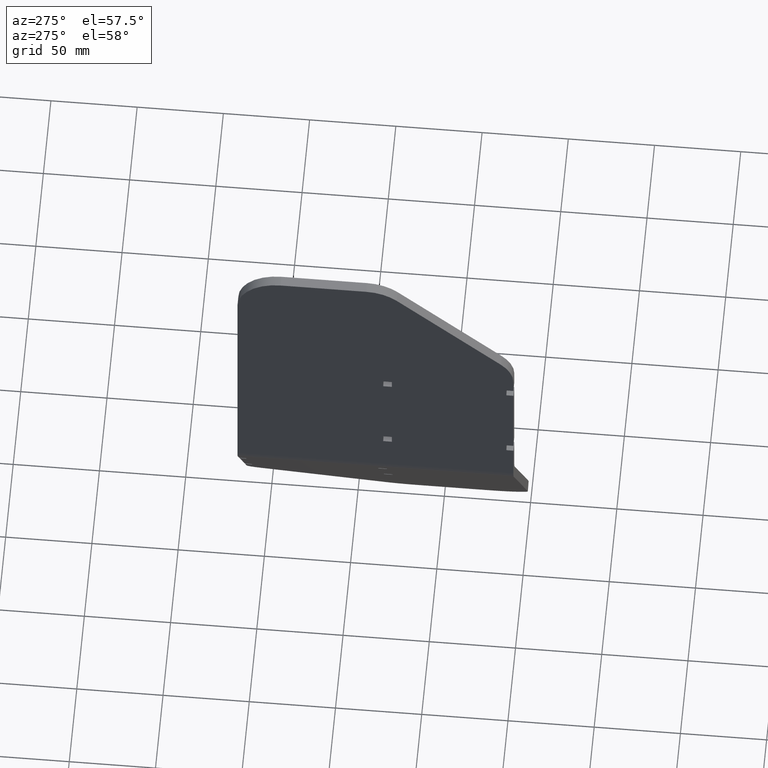
[diagram: clean part render]
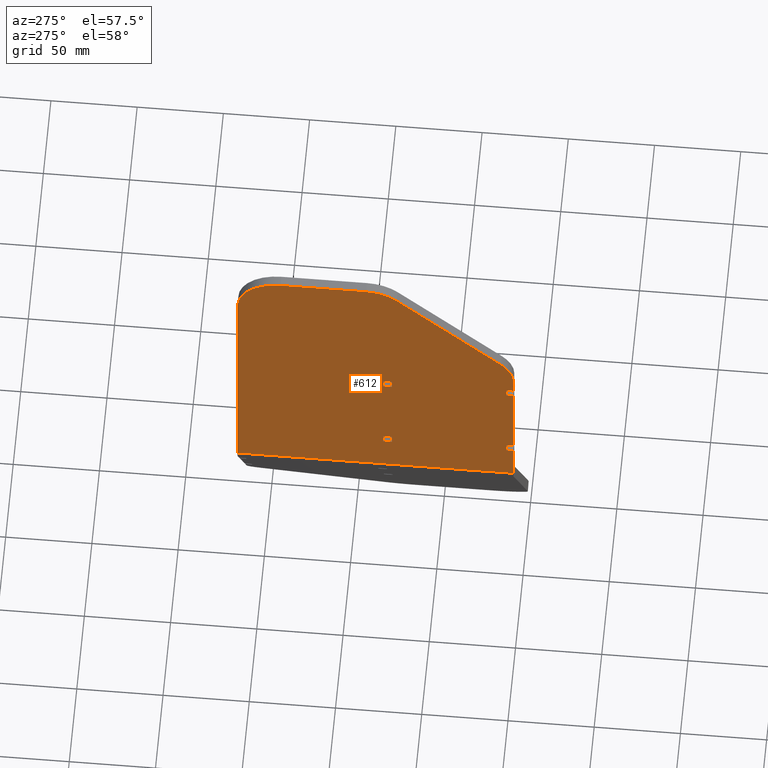
[diagram: same view with one face highlighted and labeled with its STEP entity id]
A machine part, auxiliary view. The second image highlights one B-rep face of the part: STEP entity #612.
In plain terms, the highlighted planar face has unit normal (1, 0, -0).
Its self-contained STEP definition (entity closure, byte-faithful):
#2 = CARTESIAN_POINT ( 'NONE',  ( -1005.999999999999773, -1249.305262667903435, -550.0999999999996817 ) ) ;
#6 = ORIENTED_EDGE ( 'NONE', *, *, #620, .F. ) ;
#23 = CARTESIAN_POINT ( 'NONE',  ( -1005.999999999999773, -1163.949923608576455, -449.9999999999998863 ) ) ;
#25 = EDGE_CURVE ( 'NONE', #197, #46, #1398, .T. ) ;
#46 = VERTEX_POINT ( 'NONE', #860 ) ;
#55 = VERTEX_POINT ( 'NONE', #178 ) ;
#61 = LINE ( 'NONE', #588, #390 ) ;
#72 = CARTESIAN_POINT ( 'NONE',  ( -1005.999999999999773, -574.8301822523413875, -550.0999999999996817 ) ) ;
#73 = VECTOR ( 'NONE', #355, 999.9999999999998863 ) ;
#81 = CARTESIAN_POINT ( 'NONE',  ( -1005.999999999999773, -1245.205262667903526, -550.0999999999996817 ) ) ;
#83 = EDGE_CURVE ( 'NONE', #515, #208, #1030, .T. ) ;
#102 = VECTOR ( 'NONE', #962, 1000.000000000000000 ) ;
#136 = CARTESIAN_POINT ( 'NONE',  ( -1005.999999999999773, -1178.805262667903662, -603.8999999999998636 ) ) ;
#150 = DIRECTION ( 'NONE',  ( 0.000000000000000000, 1.000000000000000000, 0.000000000000000000 ) ) ;
#155 = VERTEX_POINT ( 'NONE', #380 ) ;
#161 = VECTOR ( 'NONE', #1427, 1000.000000000000000 ) ;
#162 = CARTESIAN_POINT ( 'NONE',  ( -1005.999999999999773, -1249.305262667903435, -609.0999999999991132 ) ) ;
#170 = ORIENTED_EDGE ( 'NONE', *, *, #1161, .F. ) ;
#178 = CARTESIAN_POINT ( 'NONE',  ( -1005.999999999999773, -1249.305262667903435, -603.8999999999990678 ) ) ;
#188 = VECTOR ( 'NONE', #1446, 1000.000000000000000 ) ;
#195 = ORIENTED_EDGE ( 'NONE', *, *, #956, .T. ) ;
#197 = VERTEX_POINT ( 'NONE', #1329 ) ;
#200 = DIRECTION ( 'NONE',  ( 1.000000000000000000, 0.000000000000000000, -6.001205538514363462E-16 ) ) ;
#206 = VERTEX_POINT ( 'NONE', #787 ) ;
#208 = VERTEX_POINT ( 'NONE', #1594 ) ;
#211 = LINE ( 'NONE', #763, #1422 ) ;
#220 = VECTOR ( 'NONE', #233, 1000.000000000000000 ) ;
#227 = EDGE_LOOP ( 'NONE', ( #267, #647, #412, #1537 ) ) ;
#228 = CARTESIAN_POINT ( 'NONE',  ( -1005.999999999999773, -1178.805262667903662, -550.0999999999996817 ) ) ;
#229 = ORIENTED_EDGE ( 'NONE', *, *, #1578, .F. ) ;
#233 = DIRECTION ( 'NONE',  ( -6.001205538514363462E-16, 0.000000000000000000, -1.000000000000000000 ) ) ;
#246 = CARTESIAN_POINT ( 'NONE',  ( -1005.999999999999773, -1178.805262667903662, -544.8999999999997499 ) ) ;
#257 = DIRECTION ( 'NONE',  ( 0.000000000000000000, 1.000000000000000000, 0.000000000000000000 ) ) ;
#258 = ORIENTED_EDGE ( 'NONE', *, *, #25, .T. ) ;
#263 = LINE ( 'NONE', #676, #600 ) ;
#264 = VERTEX_POINT ( 'NONE', #228 ) ;
#267 = ORIENTED_EDGE ( 'NONE', *, *, #466, .F. ) ;
#302 = VERTEX_POINT ( 'NONE', #246 ) ;
#312 = VERTEX_POINT ( 'NONE', #136 ) ;
#321 = ORIENTED_EDGE ( 'NONE', *, *, #1336, .F. ) ;
#349 = FACE_OUTER_BOUND ( 'NONE', #403, .T. ) ;
#355 = DIRECTION ( 'NONE',  ( -4.243493131577765870E-16, -0.7071067811865489050, -0.7071067811865462405 ) ) ;
#364 = VECTOR ( 'NONE', #1267, 1000.000000000000000 ) ;
#376 = CARTESIAN_POINT ( 'NONE',  ( -1005.999999999999773, -1249.305262667903662, -535.3553390593270933 ) ) ;
#380 = CARTESIAN_POINT ( 'NONE',  ( -1005.999999999999773, -1241.982932197567607, -517.6776695296633761 ) ) ;
#390 = VECTOR ( 'NONE', #746, 1000.000000000000000 ) ;
#400 = EDGE_CURVE ( 'NONE', #312, #842, #1373, .T. ) ;
#403 = EDGE_LOOP ( 'NONE', ( #534, #6, #885, #556, #258, #465, #657, #682, #1705, #229, #321, #538, #418, #1245, #195, #677 ) ) ;
#412 = ORIENTED_EDGE ( 'NONE', *, *, #1630, .F. ) ;
#415 = VERTEX_POINT ( 'NONE', #1118 ) ;
#418 = ORIENTED_EDGE ( 'NONE', *, *, #1468, .F. ) ;
#419 = VECTOR ( 'NONE', #1153, 1000.000000000000000 ) ;
#420 = VECTOR ( 'NONE', #1447, 1000.000000000000000 ) ;
#422 = CIRCLE ( 'NONE', #1571, 25.00000000000002132 ) ;
#463 = LINE ( 'NONE', #1562, #967 ) ;
#465 = ORIENTED_EDGE ( 'NONE', *, *, #1247, .F. ) ;
#466 = EDGE_CURVE ( 'NONE', #1430, #264, #966, .T. ) ;
#485 = LINE ( 'NONE', #595, #420 ) ;
#506 = DIRECTION ( 'NONE',  ( -0.000000000000000000, -1.000000000000000000, -0.000000000000000000 ) ) ;
#514 = CARTESIAN_POINT ( 'NONE',  ( -1005.999999999999773, -574.8301822523413875, -633.3923048454130367 ) ) ;
#515 = VERTEX_POINT ( 'NONE', #162 ) ;
#534 = ORIENTED_EDGE ( 'NONE', *, *, #978, .T. ) ;
#538 = ORIENTED_EDGE ( 'NONE', *, *, #750, .F. ) ;
#552 = DIRECTION ( 'NONE',  ( -0.000000000000000000, -1.000000000000000000, -0.000000000000000000 ) ) ;
#556 = ORIENTED_EDGE ( 'NONE', *, *, #723, .T. ) ;
#588 = CARTESIAN_POINT ( 'NONE',  ( -1005.999999999999773, -1245.205262667903526, -634.9999999999997726 ) ) ;
#593 = VECTOR ( 'NONE', #506, 1000.000000000000000 ) ;
#595 = CARTESIAN_POINT ( 'NONE',  ( -1005.999999999999773, -1173.805262667904117, -634.9999999999997726 ) ) ;
#600 = VECTOR ( 'NONE', #1522, 1000.000000000000000 ) ;
#608 = EDGE_CURVE ( 'NONE', #842, #1706, #1714, .T. ) ;
#612 = ADVANCED_FACE ( 'NONE', ( #349, #1486, #662 ), #936, .F. ) ;
#618 = LINE ( 'NONE', #514, #188 ) ;
#620 = EDGE_CURVE ( 'NONE', #1752, #55, #1739, .T. ) ;
#633 = LINE ( 'NONE', #1341, #1107 ) ;
#634 = DIRECTION ( 'NONE',  ( -6.001205538514363462E-16, 0.000000000000000000, -1.000000000000000000 ) ) ;
#647 = ORIENTED_EDGE ( 'NONE', *, *, #720, .F. ) ;
#657 = ORIENTED_EDGE ( 'NONE', *, *, #803, .F. ) ;
#662 = FACE_BOUND ( 'NONE', #227, .T. ) ;
#676 = CARTESIAN_POINT ( 'NONE',  ( -1005.999999999999773, -1178.805262667903662, -634.9999999999997726 ) ) ;
#677 = ORIENTED_EDGE ( 'NONE', *, *, #829, .T. ) ;
#682 = ORIENTED_EDGE ( 'NONE', *, *, #1437, .F. ) ;
#685 = CIRCLE ( 'NONE', #1169, 25.00000000000002132 ) ;
#720 = EDGE_CURVE ( 'NONE', #415, #1430, #485, .T. ) ;
#723 = EDGE_CURVE ( 'NONE', #1391, #197, #211, .T. ) ;
#730 = CARTESIAN_POINT ( 'NONE',  ( -1005.999999999999773, -1173.805262667904117, -603.8999999999998636 ) ) ;
#746 = DIRECTION ( 'NONE',  ( 6.001205538514363462E-16, -0.000000000000000000, 1.000000000000000000 ) ) ;
#750 = EDGE_CURVE ( 'NONE', #206, #1155, #1690, .T. ) ;
#756 = CARTESIAN_POINT ( 'NONE',  ( -1005.999999999999773, -1224.305262667903889, -535.3553390593270933 ) ) ;
#763 = CARTESIAN_POINT ( 'NONE',  ( -1005.999999999999773, -1245.205262667903526, -634.9999999999997726 ) ) ;
#769 = EDGE_CURVE ( 'NONE', #1480, #312, #463, .T. ) ;
#777 = EDGE_CURVE ( 'NONE', #1752, #1391, #1313, .T. ) ;
#784 = DIRECTION ( 'NONE',  ( 1.000000000000000000, 0.000000000000000000, -6.001205538514363462E-16 ) ) ;
#787 = CARTESIAN_POINT ( 'NONE',  ( -1005.999999999999773, -1089.305262667903889, -633.3923048454130367 ) ) ;
#788 = CARTESIAN_POINT ( 'NONE',  ( -1005.999999999999773, -1173.805262667903889, -550.0999999999996817 ) ) ;
#794 = VECTOR ( 'NONE', #1010, 1000.000000000000000 ) ;
#798 = CIRCLE ( 'NONE', #1374, 25.00000000000002132 ) ;
#803 = EDGE_CURVE ( 'NONE', #155, #1104, #685, .T. ) ;
#816 = LINE ( 'NONE', #1754, #1203 ) ;
#829 = EDGE_CURVE ( 'NONE', #917, #1349, #61, .T. ) ;
#842 = VERTEX_POINT ( 'NONE', #730 ) ;
#860 = CARTESIAN_POINT ( 'NONE',  ( -1005.999999999999773, -1249.305262667903435, -544.8999999999997499 ) ) ;
#865 = DIRECTION ( 'NONE',  ( 1.000000000000000000, 0.000000000000000000, -6.001205538514363462E-16 ) ) ;
#878 = DIRECTION ( 'NONE',  ( 6.001205538514363462E-16, -0.000000000000000000, 1.000000000000000000 ) ) ;
#879 = VECTOR ( 'NONE', #1738, 1000.000000000000000 ) ;
#881 = ORIENTED_EDGE ( 'NONE', *, *, #608, .F. ) ;
#885 = ORIENTED_EDGE ( 'NONE', *, *, #777, .T. ) ;
#889 = CARTESIAN_POINT ( 'NONE',  ( -1005.999999999999773, -1245.205262667903526, -603.8999999999990678 ) ) ;
#913 = VECTOR ( 'NONE', #552, 1000.000000000000000 ) ;
#917 = VERTEX_POINT ( 'NONE', #1553 ) ;
#921 = CARTESIAN_POINT ( 'NONE',  ( -1005.999999999999773, -574.8301822523413875, -634.9999999999997726 ) ) ;
#936 = PLANE ( 'NONE',  #1766 ) ;
#952 = CARTESIAN_POINT ( 'NONE',  ( -1005.999999999999773, -1114.305262667903662, -449.9999999999998863 ) ) ;
#954 = LINE ( 'NONE', #1498, #102 ) ;
#956 = EDGE_CURVE ( 'NONE', #515, #917, #1448, .T. ) ;
#958 = CARTESIAN_POINT ( 'NONE',  ( -1005.999999999999773, -574.8301822523413875, -603.8999999999998636 ) ) ;
#962 = DIRECTION ( 'NONE',  ( -0.000000000000000000, -1.000000000000000000, -0.000000000000000000 ) ) ;
#966 = LINE ( 'NONE', #1546, #593 ) ;
#967 = VECTOR ( 'NONE', #878, 1000.000000000000000 ) ;
#978 = EDGE_CURVE ( 'NONE', #1349, #55, #633, .T. ) ;
#1010 = DIRECTION ( 'NONE',  ( -6.001205538514363462E-16, 0.000000000000000000, -1.000000000000000000 ) ) ;
#1023 = DIRECTION ( 'NONE',  ( 6.001205538514363462E-16, -0.000000000000000000, 1.000000000000000000 ) ) ;
#1030 = LINE ( 'NONE', #1163, #794 ) ;
#1032 = ORIENTED_EDGE ( 'NONE', *, *, #769, .F. ) ;
#1036 = CARTESIAN_POINT ( 'NONE',  ( -1005.999999999999773, -1173.805262667904117, -634.9999999999997726 ) ) ;
#1074 = CARTESIAN_POINT ( 'NONE',  ( -1005.999999999999773, -1249.305262667903435, -634.9999999999997726 ) ) ;
#1104 = VERTEX_POINT ( 'NONE', #376 ) ;
#1107 = VECTOR ( 'NONE', #1458, 1000.000000000000000 ) ;
#1118 = CARTESIAN_POINT ( 'NONE',  ( -1005.999999999999773, -1173.805262667904117, -544.8999999999997499 ) ) ;
#1146 = CARTESIAN_POINT ( 'NONE',  ( -1005.999999999999773, -574.8301822523413875, -544.8999999999997499 ) ) ;
#1153 = DIRECTION ( 'NONE',  ( -0.000000000000000000, -1.000000000000000000, -0.000000000000000000 ) ) ;
#1155 = VERTEX_POINT ( 'NONE', #1367 ) ;
#1156 = DIRECTION ( 'NONE',  ( 0.000000000000000000, 0.000000000000000000, -1.000000000000000000 ) ) ;
#1158 = DIRECTION ( 'NONE',  ( 0.000000000000000000, 0.000000000000000000, -1.000000000000000000 ) ) ;
#1161 = EDGE_CURVE ( 'NONE', #1706, #1480, #954, .T. ) ;
#1163 = CARTESIAN_POINT ( 'NONE',  ( -1005.999999999999773, -1249.305262667903435, -634.9999999999997726 ) ) ;
#1167 = LINE ( 'NONE', #1187, #73 ) ;
#1169 = AXIS2_PLACEMENT_3D ( 'NONE', #756, #865, #1158 ) ;
#1187 = CARTESIAN_POINT ( 'NONE',  ( -1005.999999999999545, -967.0677224601214448, -242.7624597922183227 ) ) ;
#1199 = DIRECTION ( 'NONE',  ( -6.001205538514363462E-16, 0.000000000000000000, -1.000000000000000000 ) ) ;
#1203 = VECTOR ( 'NONE', #257, 1000.000000000000000 ) ;
#1245 = ORIENTED_EDGE ( 'NONE', *, *, #83, .F. ) ;
#1247 = EDGE_CURVE ( 'NONE', #1104, #46, #1689, .T. ) ;
#1267 = DIRECTION ( 'NONE',  ( -6.001205538514363462E-16, 0.000000000000000000, -1.000000000000000000 ) ) ;
#1292 = CARTESIAN_POINT ( 'NONE',  ( -1005.999999999999773, -1089.305262667903889, -634.9999999999997726 ) ) ;
#1313 = LINE ( 'NONE', #72, #161 ) ;
#1324 = CARTESIAN_POINT ( 'NONE',  ( -1005.999999999999773, -1178.805262667903662, -609.0999999999999091 ) ) ;
#1329 = CARTESIAN_POINT ( 'NONE',  ( -1005.999999999999773, -1245.205262667903526, -544.8999999999997499 ) ) ;
#1336 = EDGE_CURVE ( 'NONE', #1155, #1629, #422, .T. ) ;
#1341 = CARTESIAN_POINT ( 'NONE',  ( -1005.999999999999773, -574.8301822523413875, -603.8999999999990678 ) ) ;
#1349 = VERTEX_POINT ( 'NONE', #889 ) ;
#1352 = EDGE_CURVE ( 'NONE', #1667, #1387, #798, .T. ) ;
#1367 = CARTESIAN_POINT ( 'NONE',  ( -1005.999999999999773, -1089.305262667903889, -474.9999999999999432 ) ) ;
#1373 = LINE ( 'NONE', #958, #1625 ) ;
#1374 = AXIS2_PLACEMENT_3D ( 'NONE', #1438, #200, #1416 ) ;
#1387 = VERTEX_POINT ( 'NONE', #1455 ) ;
#1391 = VERTEX_POINT ( 'NONE', #81 ) ;
#1398 = LINE ( 'NONE', #1146, #419 ) ;
#1416 = DIRECTION ( 'NONE',  ( 0.000000000000000000, 0.000000000000000000, -1.000000000000000000 ) ) ;
#1419 = ORIENTED_EDGE ( 'NONE', *, *, #400, .F. ) ;
#1422 = VECTOR ( 'NONE', #1023, 1000.000000000000000 ) ;
#1426 = CARTESIAN_POINT ( 'NONE',  ( -1005.999999999999773, -1249.305262667903662, -634.9999999999997726 ) ) ;
#1427 = DIRECTION ( 'NONE',  ( 0.000000000000000000, 1.000000000000000000, 0.000000000000000000 ) ) ;
#1430 = VERTEX_POINT ( 'NONE', #788 ) ;
#1437 = EDGE_CURVE ( 'NONE', #1387, #155, #1167, .T. ) ;
#1438 = CARTESIAN_POINT ( 'NONE',  ( -1005.999999999999773, -1163.949923608576455, -474.9999999999999432 ) ) ;
#1439 = DIRECTION ( 'NONE',  ( 6.001205538514363462E-16, -0.000000000000000000, 1.000000000000000000 ) ) ;
#1446 = DIRECTION ( 'NONE',  ( 0.000000000000000000, 1.000000000000000000, 0.000000000000000000 ) ) ;
#1447 = DIRECTION ( 'NONE',  ( -6.001205538514363462E-16, 0.000000000000000000, -1.000000000000000000 ) ) ;
#1448 = LINE ( 'NONE', #1485, #879 ) ;
#1454 = VECTOR ( 'NONE', #634, 1000.000000000000000 ) ;
#1455 = CARTESIAN_POINT ( 'NONE',  ( -1005.999999999999773, -1181.627593138240172, -457.3223304703362260 ) ) ;
#1458 = DIRECTION ( 'NONE',  ( -0.000000000000000000, -1.000000000000000000, -0.000000000000000000 ) ) ;
#1468 = EDGE_CURVE ( 'NONE', #208, #206, #618, .T. ) ;
#1480 = VERTEX_POINT ( 'NONE', #1324 ) ;
#1485 = CARTESIAN_POINT ( 'NONE',  ( -1005.999999999999773, -574.8301822523413875, -609.0999999999991132 ) ) ;
#1486 = FACE_BOUND ( 'NONE', #1730, .T. ) ;
#1498 = CARTESIAN_POINT ( 'NONE',  ( -1005.999999999999773, -574.8301822523413875, -609.0999999999999091 ) ) ;
#1522 = DIRECTION ( 'NONE',  ( 6.001205538514363462E-16, -0.000000000000000000, 1.000000000000000000 ) ) ;
#1537 = ORIENTED_EDGE ( 'NONE', *, *, #1596, .F. ) ;
#1546 = CARTESIAN_POINT ( 'NONE',  ( -1005.999999999999773, -574.8301822523413875, -550.0999999999996817 ) ) ;
#1547 = VECTOR ( 'NONE', #1439, 1000.000000000000000 ) ;
#1551 = CARTESIAN_POINT ( 'NONE',  ( -1005.999999999999773, -1114.305262667903662, -474.9999999999999432 ) ) ;
#1553 = CARTESIAN_POINT ( 'NONE',  ( -1005.999999999999773, -1245.205262667903526, -609.0999999999991132 ) ) ;
#1562 = CARTESIAN_POINT ( 'NONE',  ( -1005.999999999999773, -1178.805262667903662, -634.9999999999997726 ) ) ;
#1571 = AXIS2_PLACEMENT_3D ( 'NONE', #1551, #1572, #1156 ) ;
#1572 = DIRECTION ( 'NONE',  ( 1.000000000000000000, 0.000000000000000000, -6.001205538514363462E-16 ) ) ;
#1578 = EDGE_CURVE ( 'NONE', #1629, #1667, #1772, .T. ) ;
#1594 = CARTESIAN_POINT ( 'NONE',  ( -1005.999999999999773, -1249.305262667903662, -633.3923048454130367 ) ) ;
#1596 = EDGE_CURVE ( 'NONE', #264, #302, #263, .T. ) ;
#1625 = VECTOR ( 'NONE', #150, 1000.000000000000000 ) ;
#1629 = VERTEX_POINT ( 'NONE', #952 ) ;
#1630 = EDGE_CURVE ( 'NONE', #302, #415, #816, .T. ) ;
#1667 = VERTEX_POINT ( 'NONE', #23 ) ;
#1689 = LINE ( 'NONE', #1426, #364 ) ;
#1690 = LINE ( 'NONE', #1292, #1547 ) ;
#1705 = ORIENTED_EDGE ( 'NONE', *, *, #1352, .F. ) ;
#1706 = VERTEX_POINT ( 'NONE', #1776 ) ;
#1714 = LINE ( 'NONE', #1036, #1454 ) ;
#1730 = EDGE_LOOP ( 'NONE', ( #170, #881, #1419, #1032 ) ) ;
#1738 = DIRECTION ( 'NONE',  ( 0.000000000000000000, 1.000000000000000000, 0.000000000000000000 ) ) ;
#1739 = LINE ( 'NONE', #1074, #220 ) ;
#1752 = VERTEX_POINT ( 'NONE', #2 ) ;
#1754 = CARTESIAN_POINT ( 'NONE',  ( -1005.999999999999773, -574.8301822523413875, -544.8999999999997499 ) ) ;
#1762 = CARTESIAN_POINT ( 'NONE',  ( -1005.999999999999773, -574.8301822523413875, -449.9999999999998863 ) ) ;
#1766 = AXIS2_PLACEMENT_3D ( 'NONE', #921, #784, #1199 ) ;
#1772 = LINE ( 'NONE', #1762, #913 ) ;
#1776 = CARTESIAN_POINT ( 'NONE',  ( -1005.999999999999773, -1173.805262667903889, -609.0999999999999091 ) ) ;